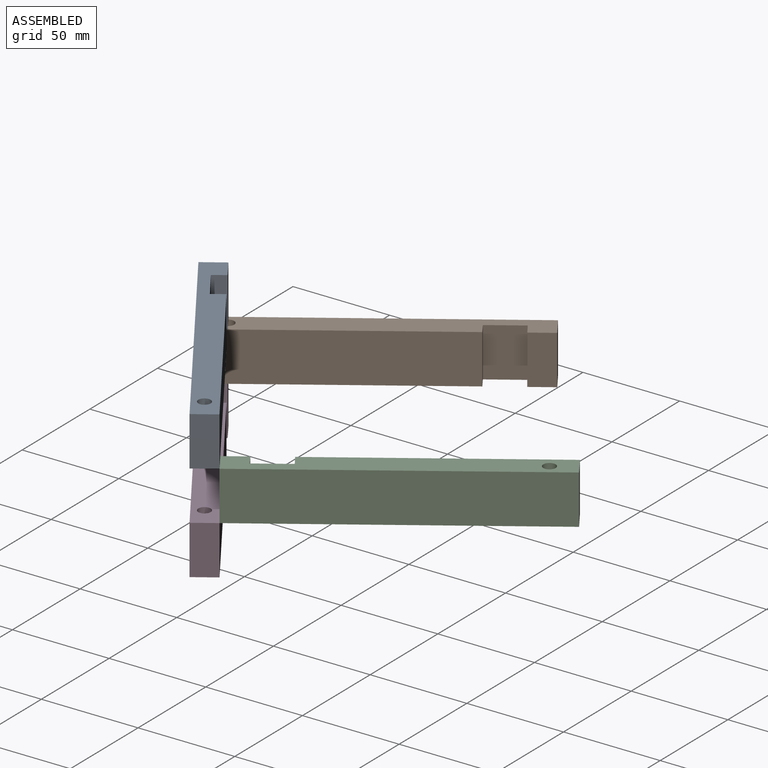
[diagram: assembled view]
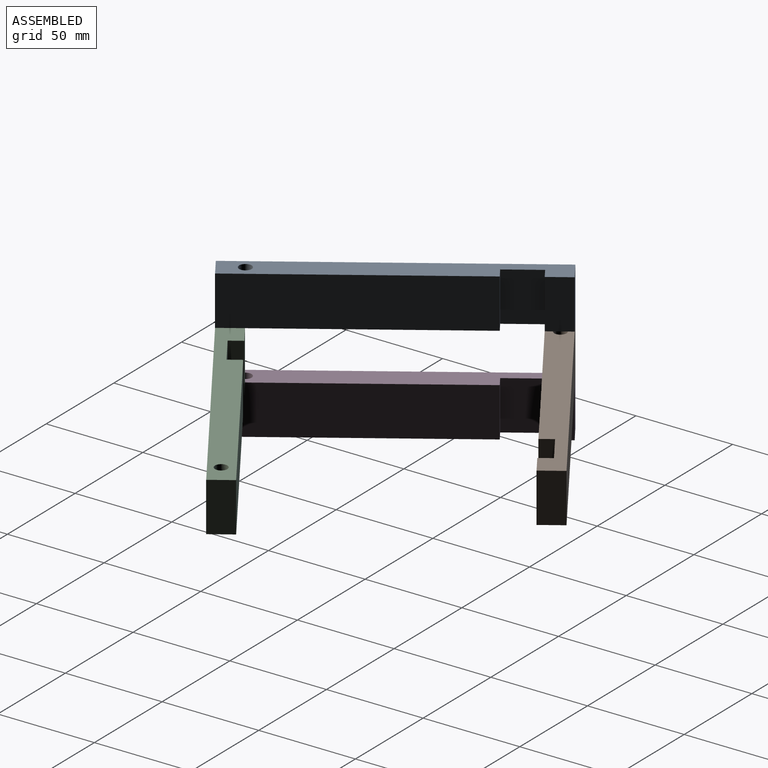
[diagram: assembled view, second angle]
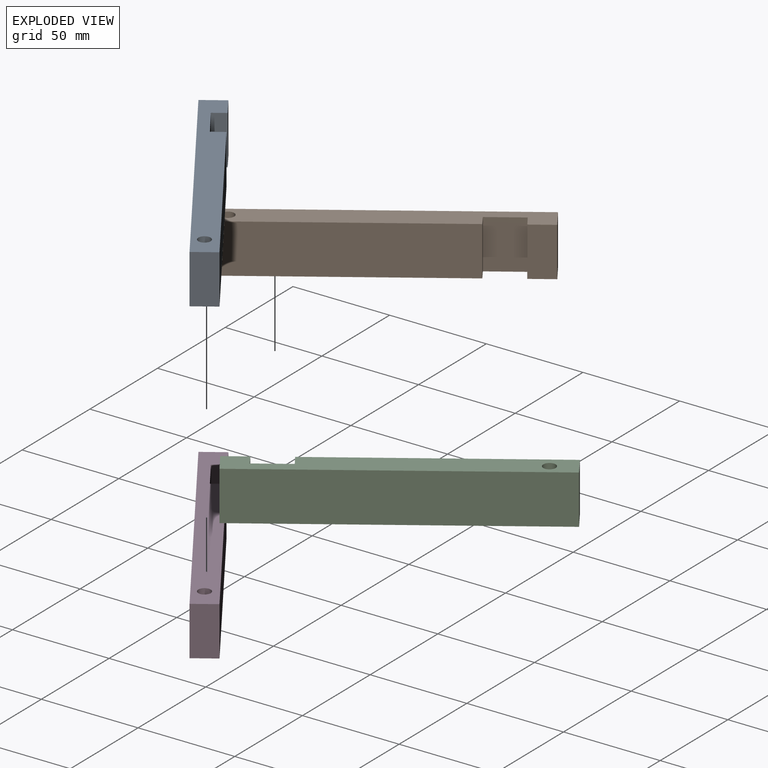
[diagram: exploded view]
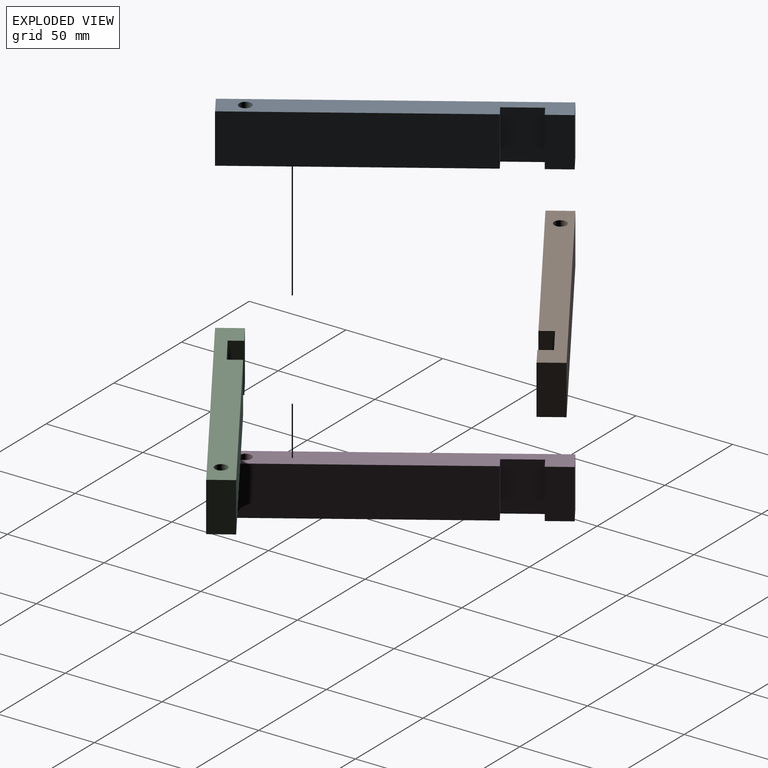
[diagram: exploded view, second angle]
ASSEMBLY  parts=4 mates=3
PART A: 11 faces, bbox 152.4x12.7x25.4 mm
  f0: plane 120.65x25.4mm, normal (0,1,0), area 3064.5mm2, adj f1,f8,f9,f10
  f1: plane 25.4x7.06mm, normal (-1,0,0), area 179.4mm2, adj f0,f2,f9,f10
  f2: plane 25.4x19.05mm, normal (0,1,0), area 483.9mm2, adj f1,f3,f9,f10
  f3: plane 25.4x7.06mm, normal (1,0,0), area 179.4mm2, adj f2,f4,f9,f10
  f4: plane 25.4x12.7mm, normal (0,1,0), area 322.6mm2, adj f3,f5,f9,f10
  f5: plane 25.4x12.7mm, normal (-1,0,0), area 322.6mm2, adj f4,f6,f9,f10
  f6: plane 152.4x25.4mm, normal (0,-1,0), area 3871mm2, adj f5,f8,f9,f10
  f7: cylinder r=3.2mm len=25.4mm, axis (0,0,-1), area 510.8mm2, adj f9,f10
  f8: plane 25.4x12.7mm, normal (1,0,0), area 322.6mm2, adj f0,f6,f9,f10
  f9: plane 152.4x12.7mm, normal (0,0,1), area 1768.7mm2, adj f0,f1,f2,f3,f4,f5,f6,f7
  f10: plane 152.4x12.7mm, normal (0,0,-1), area 1768.7mm2, adj f0,f1,f2,f3,f4,f5,f6,f7
PART B: same geometry as A
PART C: same geometry as A
PART D: same geometry as A
PLACE A rot(axis=(0,0,-1),56.4deg) t=(-114.1,-170.37,11.23)mm
PLACE B rot(axis=(0,0,-1),146.4deg) t=(-182.36,36.07,-14.17)mm
PLACE C rot(axis=(0,0,1),33.6deg) t=(102.93,-95.09,-14.17)mm fixed
PLACE D rot(axis=(0,0,-1),56.4deg) t=(-114.1,-170.37,-39.57)mm
MATE fastened D.f9 <-> C.f10  axis (0,0,1) through (-55.75,-131.63,-14.17)mm
MATE fastened B.f10 <-> D.f9  axis (0,0,-1) through (-150.64,-11.7,-14.17)mm
MATE fastened C.f9 <-> A.f10  axis (0,0,1) through (-55.75,-131.63,11.23)mm
